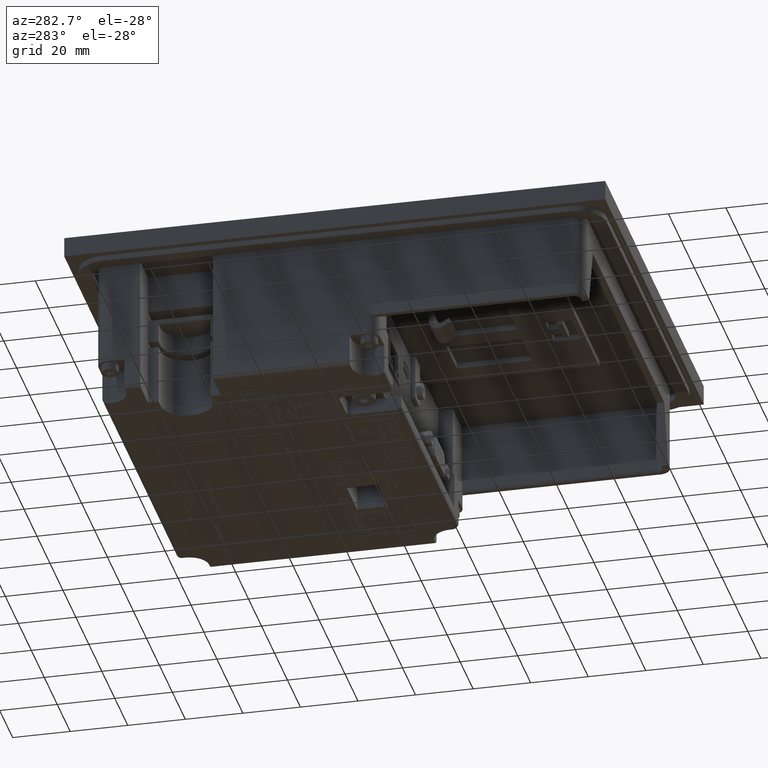
[diagram: clean part render]
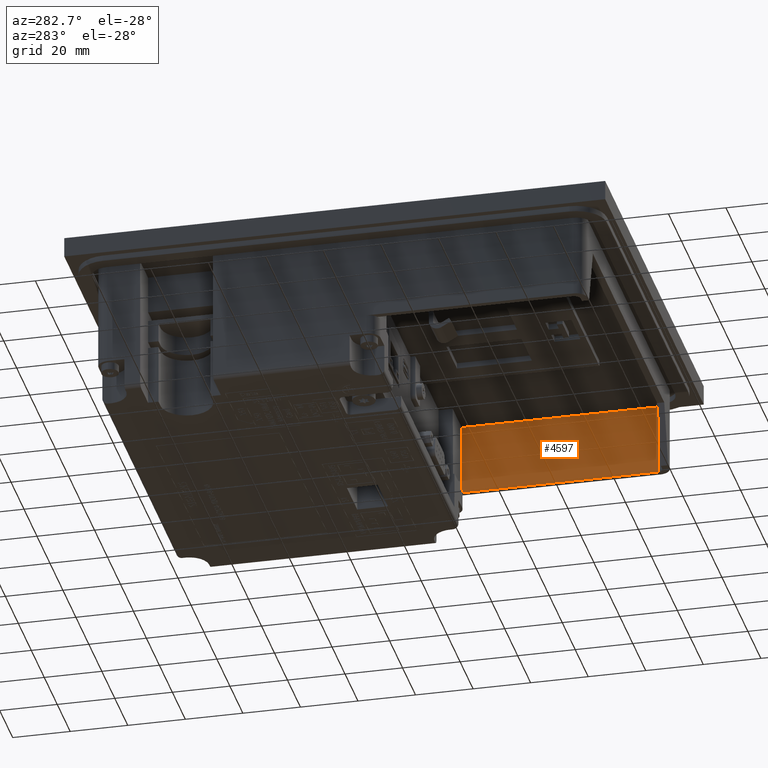
[diagram: same view with one face highlighted and labeled with its STEP entity id]
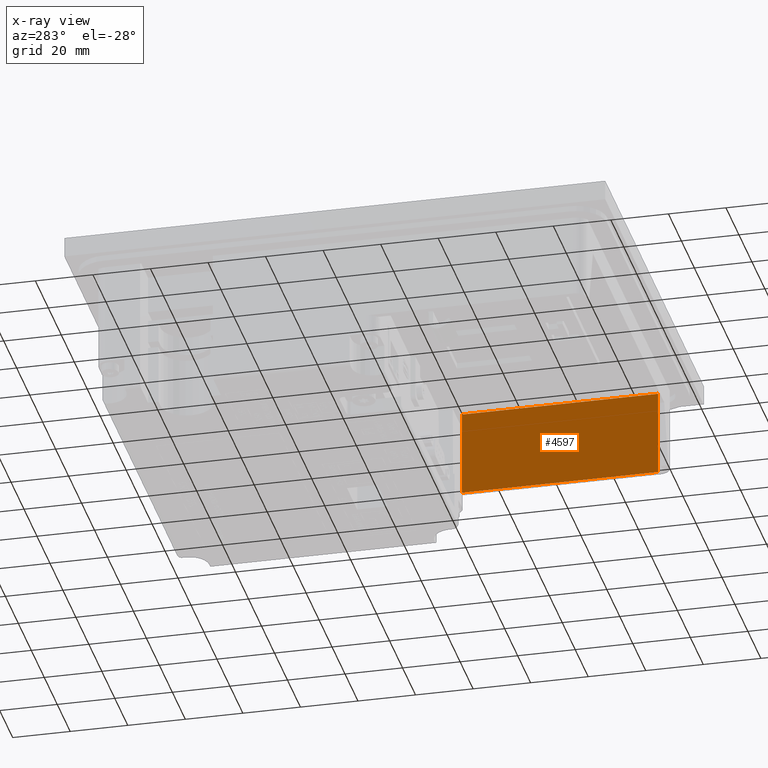
[diagram: x-ray of the same camera — body ghosted, the highlighted face saturated]
A machine part, auxiliary view. The second image highlights one B-rep face of the part: STEP entity #4597.
The next image is the same camera in x-ray: the body ghosted, the highlighted face saturated — about 0% of this face is hidden behind the body in this view.
In plain terms, the highlighted planar face has unit normal (-1, 0, 0).
Its self-contained STEP definition (entity closure, byte-faithful):
#4597=ADVANCED_FACE('',(#9598),#7287,.T.);
#7287=PLANE('',#50453);
#9598=FACE_OUTER_BOUND('',#12133,.T.);
#12133=EDGE_LOOP('',(#15587,#15588,#15589,#15590,#15591));
#15587=ORIENTED_EDGE('',*,*,#32655,.F.);
#15588=ORIENTED_EDGE('',*,*,#32656,.F.);
#15589=ORIENTED_EDGE('',*,*,#32618,.T.);
#15590=ORIENTED_EDGE('',*,*,#32633,.T.);
#15591=ORIENTED_EDGE('',*,*,#32657,.T.);
#28204=VERTEX_POINT('',#65400);
#28205=VERTEX_POINT('',#65402);
#28215=VERTEX_POINT('',#65430);
#28230=VERTEX_POINT('',#65472);
#28231=VERTEX_POINT('',#65473);
#32618=EDGE_CURVE('',#28205,#28204,#39036,.T.);
#32633=EDGE_CURVE('',#28204,#28215,#39050,.T.);
#32655=EDGE_CURVE('',#28230,#28231,#39068,.T.);
#32656=EDGE_CURVE('',#28205,#28230,#39069,.T.);
#32657=EDGE_CURVE('',#28215,#28231,#39070,.T.);
#39036=LINE('',#65401,#44726);
#39050=LINE('',#65431,#44740);
#39068=LINE('',#65471,#44758);
#39069=LINE('',#65474,#44759);
#39070=LINE('',#65475,#44760);
#44726=VECTOR('',#53728,1.);
#44740=VECTOR('',#53752,1.);
#44758=VECTOR('',#53786,1.);
#44759=VECTOR('',#53787,1.);
#44760=VECTOR('',#53788,1.);
#50453=AXIS2_PLACEMENT_3D('',#65476,#53789,#53790);
#53728=DIRECTION('',(0.,1.,0.));
#53752=DIRECTION('',(0.,1.,0.));
#53786=DIRECTION('',(0.,1.,0.));
#53787=DIRECTION('',(0.,0.,1.));
#53788=DIRECTION('',(0.,0.,1.));
#53789=DIRECTION('',(1.,0.,0.));
#53790=DIRECTION('',(0.,0.,-1.));
#65400=CARTESIAN_POINT('',(-65.06590840509,49.0752040029432,-36.));
#65401=CARTESIAN_POINT('',(-65.06590840509,49.0211066486,-36.));
#65402=CARTESIAN_POINT('',(-65.06590840509,49.0211066486,-36.));
#65430=CARTESIAN_POINT('',(-65.06590840509,117.22932529197,-36.));
#65431=CARTESIAN_POINT('',(-65.06590840509,49.0211066486,-36.));
#65471=CARTESIAN_POINT('',(-65.06590840509,49.0211066486,-6.));
#65472=CARTESIAN_POINT('',(-65.06590840509,49.0211066486,-6.));
#65473=CARTESIAN_POINT('',(-65.06590840509,117.22932529197,-6.));
#65474=CARTESIAN_POINT('',(-65.06590840509,49.0211066486,-36.));
#65475=CARTESIAN_POINT('',(-65.06590840509,117.22932529197,-36.));
#65476=CARTESIAN_POINT('',(-65.06590840509,49.0211066486,-36.));